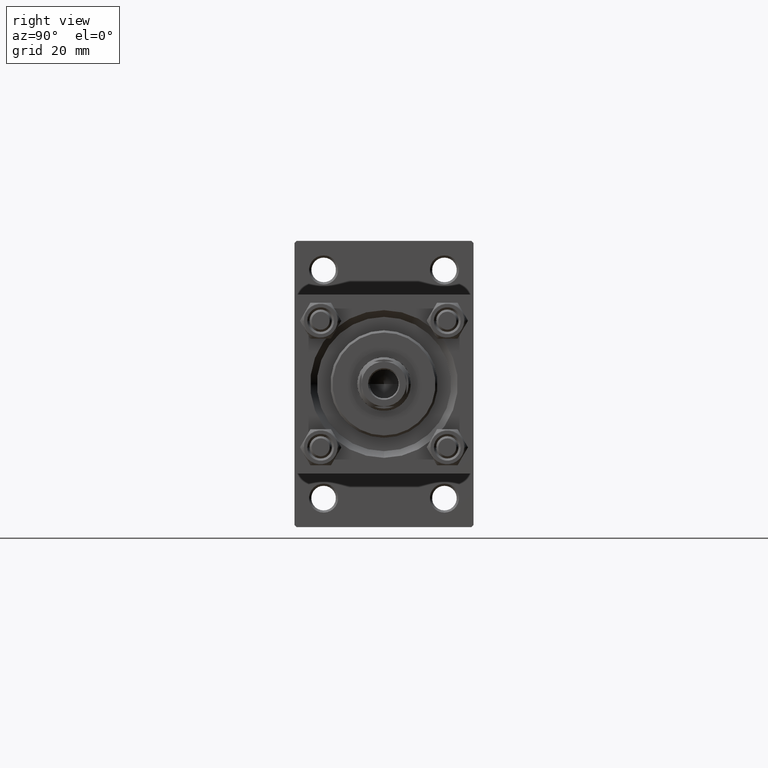
[diagram: clean part render]
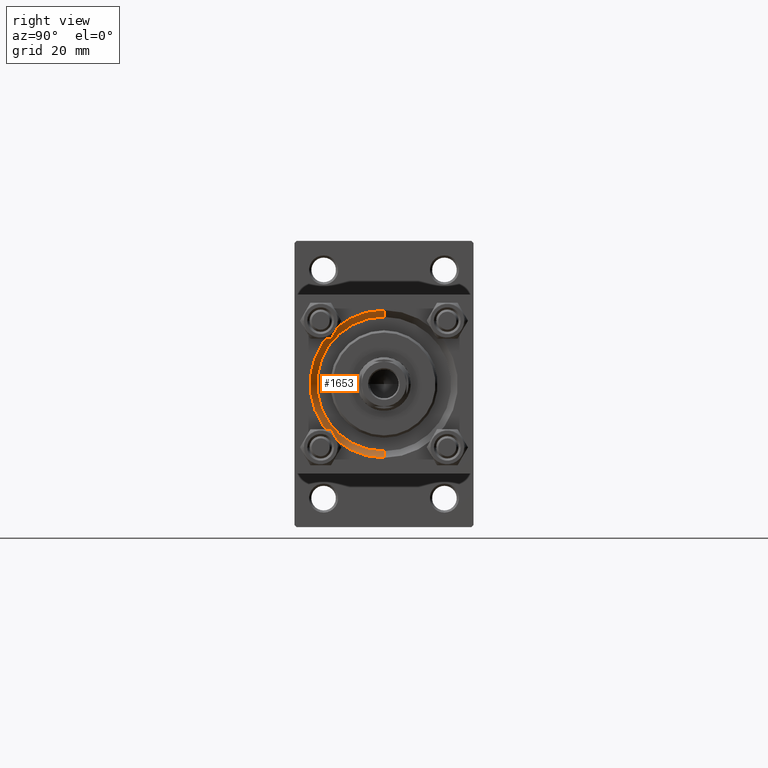
[diagram: same view with one face highlighted and labeled with its STEP entity id]
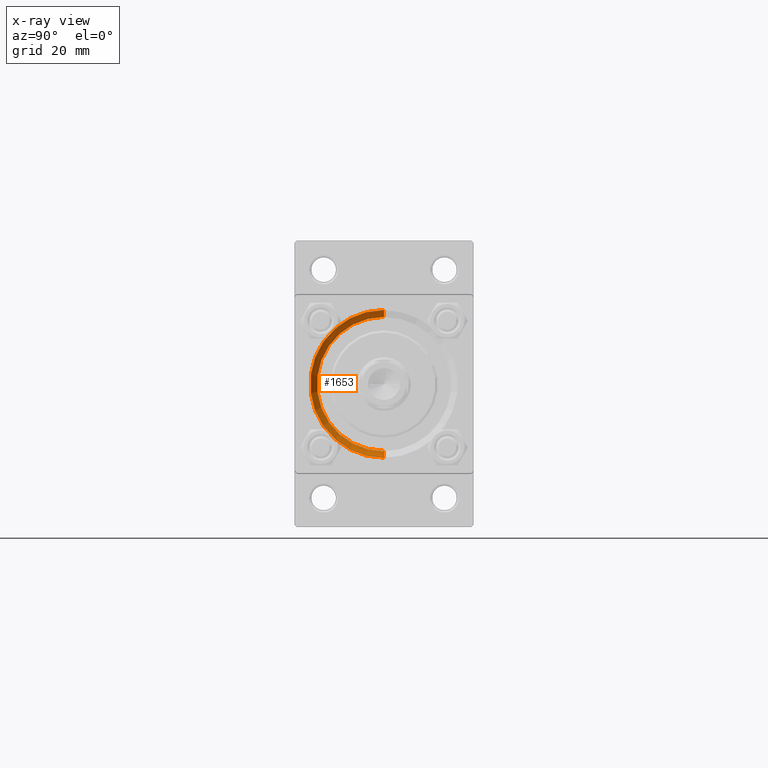
[diagram: x-ray of the same camera — body ghosted, the highlighted face saturated]
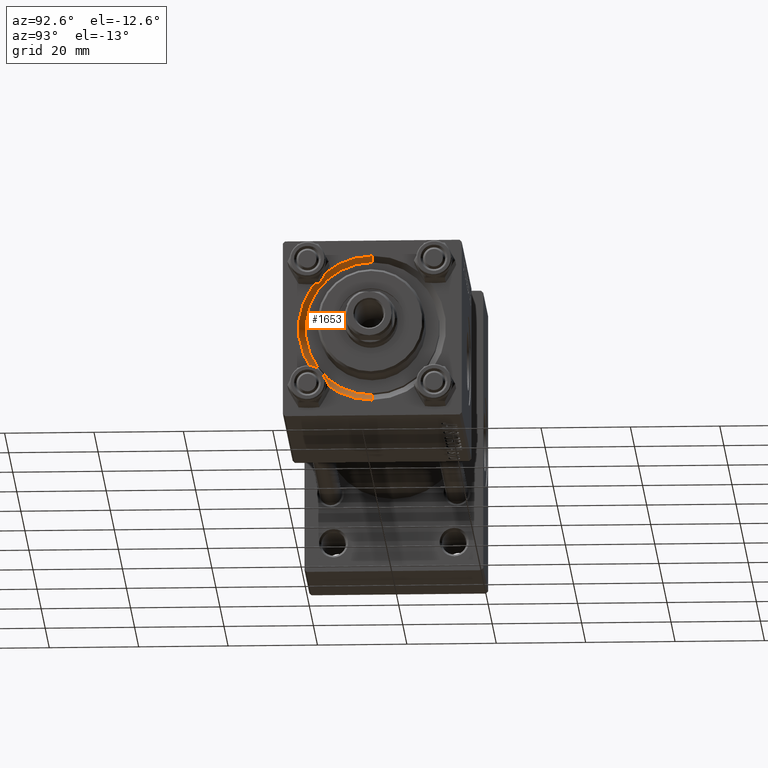
[diagram: same view with one face highlighted and labeled with its STEP entity id]
A machine part, right view. The second image highlights one B-rep face of the part: STEP entity #1653.
The next image is the same camera in x-ray: the body ghosted, the highlighted face saturated — about 0% of this face is hidden behind the body in this view.
A second angle (auxiliary view) of the same face is appended — the face is thin or edge-on in the first view.
In plain terms, the highlighted conical surface has half-angle 45 deg.
Its self-contained STEP definition (entity closure, byte-faithful):
#112 = LINE ( 'NONE', #15266, #41914 ) ;
#1653 = ADVANCED_FACE ( 'NONE', ( #6195 ), #35869, .F. ) ;
#4372 = AXIS2_PLACEMENT_3D ( 'NONE', #21629, #48102, #13535 ) ;
#5206 = VERTEX_POINT ( 'NONE', #8065 ) ;
#6195 = FACE_OUTER_BOUND ( 'NONE', #13238, .T. ) ;
#7162 = EDGE_CURVE ( 'NONE', #16071, #42036, #24634, .T. ) ;
#7471 = DIRECTION ( 'NONE',  ( 0.000000000000000000, 0.000000000000000000, 1.000000000000000000 ) ) ;
#8065 = CARTESIAN_POINT ( 'NONE',  ( 130.0000000000000000, 2.020667218593134678E-15, 16.50000000000001421 ) ) ;
#10780 = DIRECTION ( 'NONE',  ( 0.7071067811865507924, 8.659560562354895880E-17, 0.7071067811865442421 ) ) ;
#11925 = DIRECTION ( 'NONE',  ( 0.000000000000000000, 0.000000000000000000, 1.000000000000000000 ) ) ;
#12417 = ORIENTED_EDGE ( 'NONE', *, *, #38304, .F. ) ;
#13238 = EDGE_LOOP ( 'NONE', ( #24151, #15765, #12417, #29752 ) ) ;
#13535 = DIRECTION ( 'NONE',  ( 0.000000000000000000, 0.000000000000000000, -1.000000000000000000 ) ) ;
#13989 = CIRCLE ( 'NONE', #16409, 16.50000000000001421 ) ;
#13993 = CARTESIAN_POINT ( 'NONE',  ( 128.4999999999999716, 1.836970198721029589E-15, 15.00000000000000000 ) ) ;
#15266 = CARTESIAN_POINT ( 'NONE',  ( 128.4999999999999716, 0.000000000000000000, -15.00000000000000000 ) ) ;
#15765 = ORIENTED_EDGE ( 'NONE', *, *, #21357, .T. ) ;
#15996 = CARTESIAN_POINT ( 'NONE',  ( 128.4999999999999716, 0.000000000000000000, -15.00000000000000000 ) ) ;
#16071 = VERTEX_POINT ( 'NONE', #13993 ) ;
#16409 = AXIS2_PLACEMENT_3D ( 'NONE', #27577, #39421, #11925 ) ;
#17747 = EDGE_CURVE ( 'NONE', #42036, #27499, #112, .T. ) ;
#19844 = DIRECTION ( 'NONE',  ( 1.000000000000000000, 0.000000000000000000, 0.000000000000000000 ) ) ;
#21357 = EDGE_CURVE ( 'NONE', #16071, #5206, #45348, .T. ) ;
#21629 = CARTESIAN_POINT ( 'NONE',  ( 128.4999999999999716, 0.000000000000000000, 0.000000000000000000 ) ) ;
#24151 = ORIENTED_EDGE ( 'NONE', *, *, #7162, .F. ) ;
#24634 = CIRCLE ( 'NONE', #35901, 15.00000000000000000 ) ;
#27499 = VERTEX_POINT ( 'NONE', #31323 ) ;
#27577 = CARTESIAN_POINT ( 'NONE',  ( 130.0000000000000000, 0.000000000000000000, 0.000000000000000000 ) ) ;
#29752 = ORIENTED_EDGE ( 'NONE', *, *, #17747, .F. ) ;
#31323 = CARTESIAN_POINT ( 'NONE',  ( 130.0000000000000000, 0.000000000000000000, -16.50000000000001421 ) ) ;
#32936 = VECTOR ( 'NONE', #10780, 1000.000000000000114 ) ;
#34244 = CARTESIAN_POINT ( 'NONE',  ( 128.4999999999999716, 0.000000000000000000, 0.000000000000000000 ) ) ;
#34702 = DIRECTION ( 'NONE',  ( 0.7071067811865507924, 0.000000000000000000, -0.7071067811865442421 ) ) ;
#35869 = CONICAL_SURFACE ( 'NONE', #4372, 15.00000000000000000, 0.7853981633974437271 ) ;
#35901 = AXIS2_PLACEMENT_3D ( 'NONE', #34244, #19844, #7471 ) ;
#38304 = EDGE_CURVE ( 'NONE', #27499, #5206, #13989, .T. ) ;
#39421 = DIRECTION ( 'NONE',  ( -1.000000000000000000, -0.000000000000000000, -0.000000000000000000 ) ) ;
#41914 = VECTOR ( 'NONE', #34702, 1000.000000000000114 ) ;
#42036 = VERTEX_POINT ( 'NONE', #15996 ) ;
#44602 = CARTESIAN_POINT ( 'NONE',  ( 128.4999999999999716, 1.836970198721029589E-15, 15.00000000000000000 ) ) ;
#45348 = LINE ( 'NONE', #44602, #32936 ) ;
#48102 = DIRECTION ( 'NONE',  ( 1.000000000000000000, 0.000000000000000000, 0.000000000000000000 ) ) ;